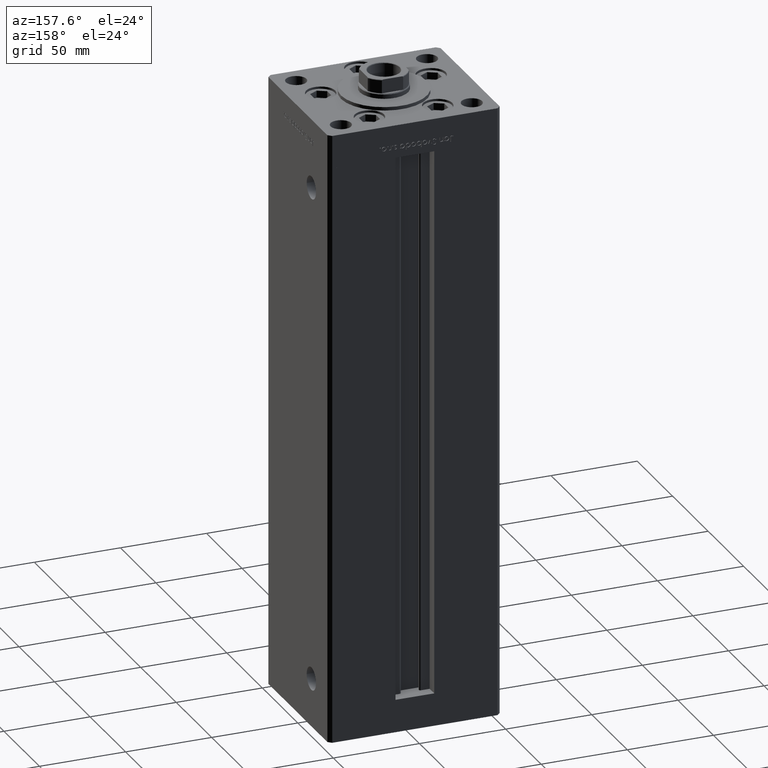
[diagram: clean part render]
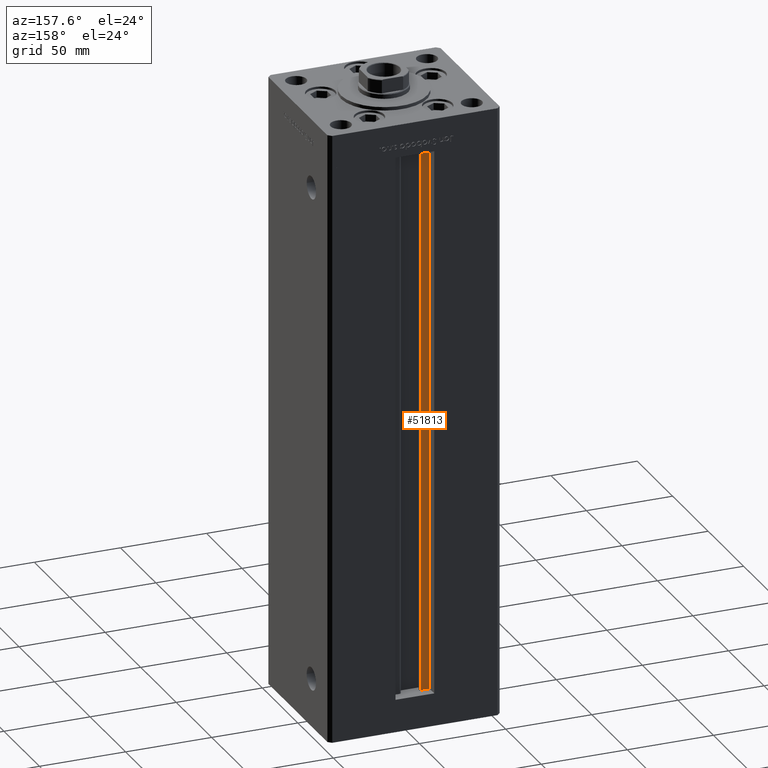
[diagram: same view with one face highlighted and labeled with its STEP entity id]
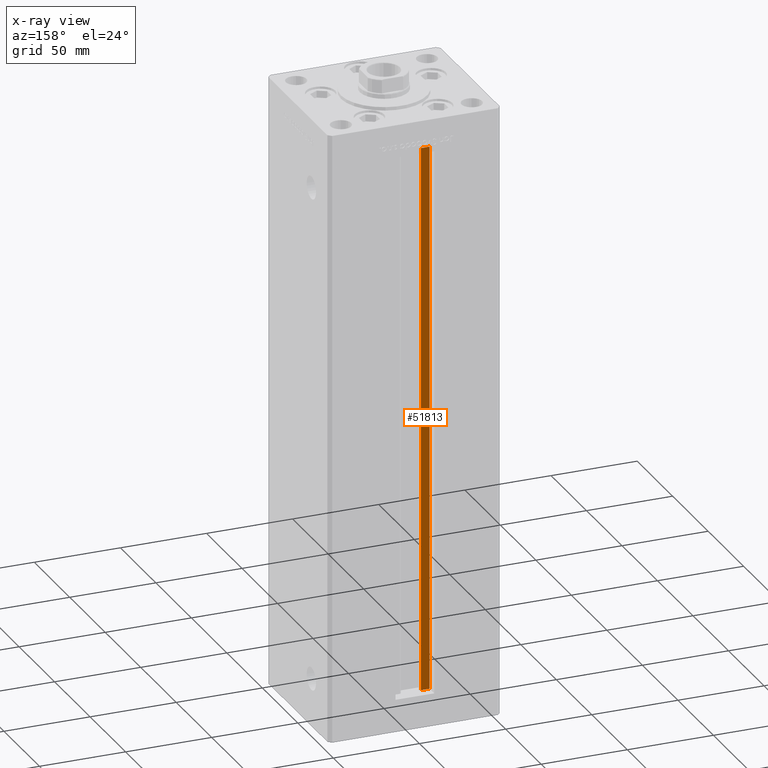
[diagram: x-ray of the same camera — body ghosted, the highlighted face saturated]
A machine part, auxiliary view. The second image highlights one B-rep face of the part: STEP entity #51813.
The next image is the same camera in x-ray: the body ghosted, the highlighted face saturated — about 0% of this face is hidden behind the body in this view.
In plain terms, the highlighted planar face has unit normal (0, -1, 0).
Its self-contained STEP definition (entity closure, byte-faithful):
#391 = FACE_OUTER_BOUND ( 'NONE', #42846, .T. ) ;
#4611 = DIRECTION ( 'NONE',  ( 0.000000000000000000, 0.000000000000000000, -1.000000000000000000 ) ) ;
#5827 = CARTESIAN_POINT ( 'NONE',  ( -11.24999999999999822, 36.99999999999999289, 0.000000000000000000 ) ) ;
#6099 = VERTEX_POINT ( 'NONE', #5827 ) ;
#6741 = VECTOR ( 'NONE', #38500, 1000.000000000000000 ) ;
#8370 = LINE ( 'NONE', #16558, #9150 ) ;
#8952 = EDGE_CURVE ( 'NONE', #33426, #18688, #8370, .T. ) ;
#9150 = VECTOR ( 'NONE', #23708, 1000.000000000000000 ) ;
#13638 = VECTOR ( 'NONE', #19621, 1000.000000000000000 ) ;
#16138 = CARTESIAN_POINT ( 'NONE',  ( -6.183333333333997928, 36.99999999999999289, 0.000000000000000000 ) ) ;
#16440 = ORIENTED_EDGE ( 'NONE', *, *, #44795, .F. ) ;
#16512 = CARTESIAN_POINT ( 'NONE',  ( -6.183333333333997928, 36.99999999999999289, 0.000000000000000000 ) ) ;
#16558 = CARTESIAN_POINT ( 'NONE',  ( 0.000000000000000000, 36.99999999999999289, 318.5000000000000000 ) ) ;
#18688 = VERTEX_POINT ( 'NONE', #43938 ) ;
#19234 = ORIENTED_EDGE ( 'NONE', *, *, #23853, .T. ) ;
#19621 = DIRECTION ( 'NONE',  ( -0.000000000000000000, -0.000000000000000000, 1.000000000000000000 ) ) ;
#20703 = CARTESIAN_POINT ( 'NONE',  ( -6.183333333333997928, 36.99999999999999289, 318.5000000000000000 ) ) ;
#21884 = LINE ( 'NONE', #50097, #6741 ) ;
#22490 = ORIENTED_EDGE ( 'NONE', *, *, #8952, .F. ) ;
#22699 = ORIENTED_EDGE ( 'NONE', *, *, #34228, .F. ) ;
#23708 = DIRECTION ( 'NONE',  ( -1.000000000000000000, 0.000000000000000000, 0.000000000000000000 ) ) ;
#23853 = EDGE_CURVE ( 'NONE', #6099, #18688, #24348, .T. ) ;
#24348 = LINE ( 'NONE', #40439, #13638 ) ;
#29454 = CARTESIAN_POINT ( 'NONE',  ( -6.183333333333997928, 36.99999999999999289, 0.000000000000000000 ) ) ;
#32228 = DIRECTION ( 'NONE',  ( -0.000000000000000000, -0.000000000000000000, 1.000000000000000000 ) ) ;
#32606 = DIRECTION ( 'NONE',  ( 0.000000000000000000, -1.000000000000000000, -0.000000000000000000 ) ) ;
#32863 = PLANE ( 'NONE',  #43341 ) ;
#33426 = VERTEX_POINT ( 'NONE', #20703 ) ;
#34228 = EDGE_CURVE ( 'NONE', #6099, #36185, #21884, .T. ) ;
#36185 = VERTEX_POINT ( 'NONE', #29454 ) ;
#38500 = DIRECTION ( 'NONE',  ( 1.000000000000000000, -0.000000000000000000, -0.000000000000000000 ) ) ;
#40439 = CARTESIAN_POINT ( 'NONE',  ( -11.24999999999999822, 36.99999999999999289, 0.000000000000000000 ) ) ;
#42846 = EDGE_LOOP ( 'NONE', ( #16440, #22699, #19234, #22490 ) ) ;
#43270 = VECTOR ( 'NONE', #32228, 1000.000000000000000 ) ;
#43341 = AXIS2_PLACEMENT_3D ( 'NONE', #16512, #32606, #4611 ) ;
#43938 = CARTESIAN_POINT ( 'NONE',  ( -11.24999999999999822, 36.99999999999999289, 318.5000000000000000 ) ) ;
#44795 = EDGE_CURVE ( 'NONE', #36185, #33426, #48301, .T. ) ;
#48301 = LINE ( 'NONE', #16138, #43270 ) ;
#50097 = CARTESIAN_POINT ( 'NONE',  ( -6.183333333333997928, 36.99999999999999289, 0.000000000000000000 ) ) ;
#51813 = ADVANCED_FACE ( 'NONE', ( #391 ), #32863, .F. ) ;